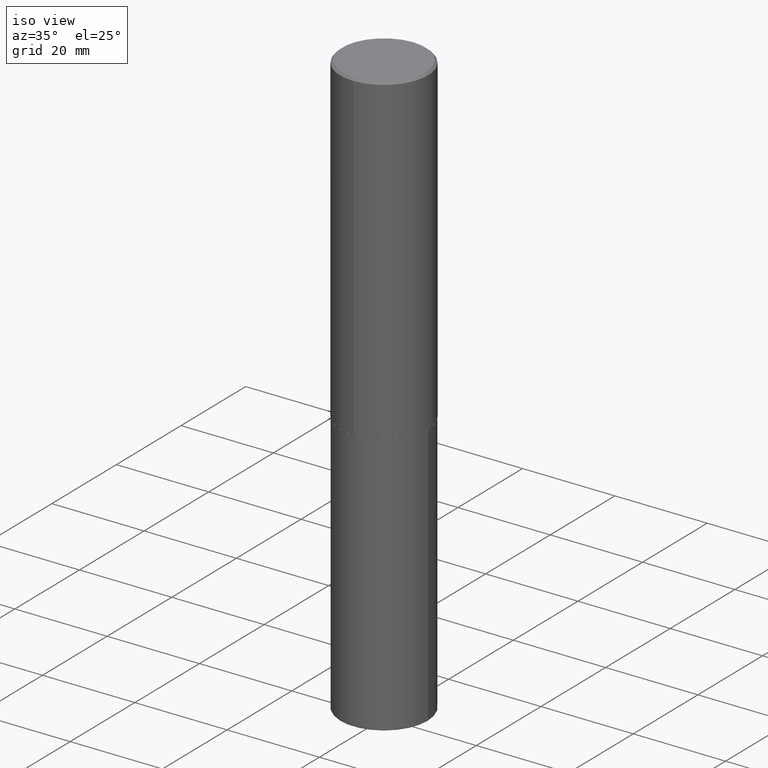
[diagram: clean part render]
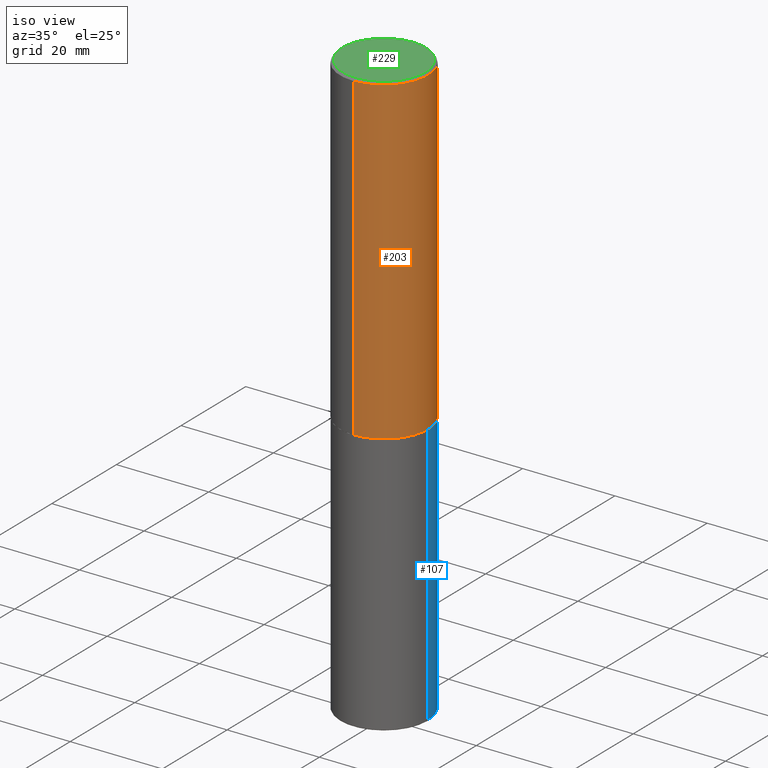
[diagram: same view with three faces highlighted in distinct colors, each labeled with its STEP entity id]
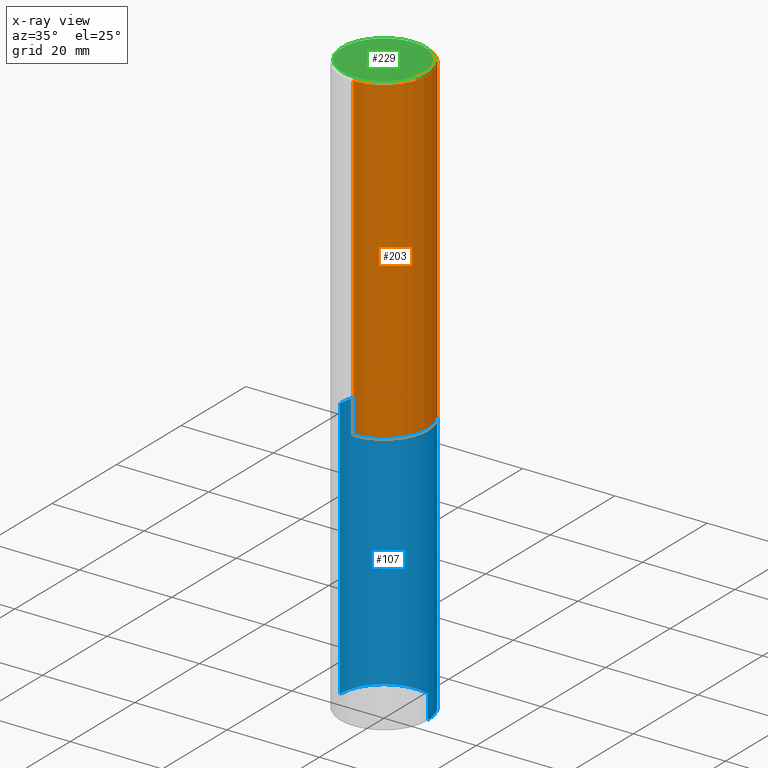
[diagram: x-ray of the same camera — body ghosted, the three highlighted faces saturated]
A machine part, iso view with three faces highlighted in distinct colors.
The next image is the same camera in x-ray (body ghosted, the three faces saturated) — at least one of them is partly hidden behind the body in this view.
Their STEP definitions:

[orange] entity #203 — the highlighted cylindrical surface (partial cylindrical patch) has radius 9.525 mm, axis along (-0, 0, 1).
#3 = ORIENTED_EDGE ( 'NONE', *, *, #283, .T. ) ;
#5 = AXIS2_PLACEMENT_3D ( 'NONE', #351, #161, #191 ) ;
#25 = EDGE_LOOP ( 'NONE', ( #71, #3, #204, #89 ) ) ;
#36 = CARTESIAN_POINT ( 'NONE',  ( 0.000000000000000000, 0.000000000000000000, 0.000000000000000000 ) ) ;
#43 = DIRECTION ( 'NONE',  ( -6.982962677686265922E-15, -1.000000000000000000, 3.494488891895536035E-15 ) ) ;
#55 = VERTEX_POINT ( 'NONE', #359 ) ;
#61 = DIRECTION ( 'NONE',  ( -2.446040391741596606E-29, 3.490662795793665557E-15, 1.000000000000000000 ) ) ;
#63 = CIRCLE ( 'NONE', #326, 0.3750000000000000555 ) ;
#71 = ORIENTED_EDGE ( 'NONE', *, *, #100, .T. ) ;
#81 = CYLINDRICAL_SURFACE ( 'NONE', #194, 0.3750000000000002220 ) ;
#89 = ORIENTED_EDGE ( 'NONE', *, *, #192, .F. ) ;
#100 = EDGE_CURVE ( 'NONE', #174, #116, #159, .T. ) ;
#110 = CARTESIAN_POINT ( 'NONE',  ( 2.664535259100376880E-15, 0.3750000000000002220, -1.308998548422625521E-15 ) ) ;
#116 = VERTEX_POINT ( 'NONE', #290 ) ;
#154 = EDGE_CURVE ( 'NONE', #341, #55, #63, .T. ) ;
#159 = CIRCLE ( 'NONE', #5, 0.3750000000000003886 ) ;
#161 = DIRECTION ( 'NONE',  ( -2.446040391741596606E-29, 3.490662795793665557E-15, 1.000000000000000000 ) ) ;
#162 = LINE ( 'NONE', #286, #309 ) ;
#167 = DIRECTION ( 'NONE',  ( -6.982962677686266711E-15, -1.000000000000000000, 3.490662795793665951E-15 ) ) ;
#174 = VERTEX_POINT ( 'NONE', #197 ) ;
#191 = DIRECTION ( 'NONE',  ( -6.982962677686265922E-15, -1.000000000000000000, 2.913971193241877611E-15 ) ) ;
#192 = EDGE_CURVE ( 'NONE', #174, #341, #162, .T. ) ;
#193 = CARTESIAN_POINT ( 'NONE',  ( 4.892080783483214581E-31, -6.981325591587361238E-17, -0.02000000000000008715 ) ) ;
#194 = AXIS2_PLACEMENT_3D ( 'NONE', #36, #195, #167 ) ;
#195 = DIRECTION ( 'NONE',  ( -2.446040391741596606E-29, 3.490662795793665557E-15, 1.000000000000000000 ) ) ;
#197 = CARTESIAN_POINT ( 'NONE',  ( -2.618611004132284935E-15, -0.3750000000000099920, -2.748999999999999222 ) ) ;
#203 = ADVANCED_FACE ( 'NONE', ( #386 ), #81, .T. ) ;
#204 = ORIENTED_EDGE ( 'NONE', *, *, #154, .F. ) ;
#206 = VECTOR ( 'NONE', #61, 39.37007874015748143 ) ;
#208 = CARTESIAN_POINT ( 'NONE',  ( -2.572686749164323547E-15, -0.3750000000000001110, -0.01999999999999877570 ) ) ;
#282 = DIRECTION ( 'NONE',  ( -2.446040391741596606E-29, 3.490662795793665557E-15, 1.000000000000000000 ) ) ;
#283 = EDGE_CURVE ( 'NONE', #116, #55, #411, .T. ) ;
#286 = CARTESIAN_POINT ( 'NONE',  ( -2.618611004132351594E-15, -0.3750000000000002220, 1.308998548422625521E-15 ) ) ;
#290 = CARTESIAN_POINT ( 'NONE',  ( 2.664535259100411196E-15, 0.3749999999999907296, -2.749000000000000998 ) ) ;
#309 = VECTOR ( 'NONE', #358, 39.37007874015748143 ) ;
#326 = AXIS2_PLACEMENT_3D ( 'NONE', #193, #282, #43 ) ;
#341 = VERTEX_POINT ( 'NONE', #208 ) ;
#351 = CARTESIAN_POINT ( 'NONE',  ( 6.724165036897648492E-29, -9.595832025636787455E-15, -2.749000000000000110 ) ) ;
#358 = DIRECTION ( 'NONE',  ( -2.446040391741596606E-29, 3.490662795793665557E-15, 1.000000000000000000 ) ) ;
#359 = CARTESIAN_POINT ( 'NONE',  ( 2.618611004132350411E-15, 0.3749999999999999445, -0.02000000000000139513 ) ) ;
#386 = FACE_OUTER_BOUND ( 'NONE', #25, .T. ) ;
#411 = LINE ( 'NONE', #110, #206 ) ;

[blue] entity #107 — the highlighted cylindrical surface (partial cylindrical patch) has radius 9.525 mm, axis along (-0, 0, 1).
#10 = VERTEX_POINT ( 'NONE', #168 ) ;
#17 = CARTESIAN_POINT ( 'NONE',  ( 1.220288934286383144E-28, -1.742249188082729666E-14, -4.990000000000000213 ) ) ;
#31 = DIRECTION ( 'NONE',  ( 1.000000000000000000, -6.982962677686261189E-15, 0.000000000000000000 ) ) ;
#37 = LINE ( 'NONE', #113, #216 ) ;
#45 = ORIENTED_EDGE ( 'NONE', *, *, #403, .F. ) ;
#52 = ORIENTED_EDGE ( 'NONE', *, *, #171, .T. ) ;
#66 = VERTEX_POINT ( 'NONE', #143 ) ;
#78 = DIRECTION ( 'NONE',  ( -2.445468806185136597E-29, 3.491481338843145583E-15, 1.000000000000000000 ) ) ;
#83 = ORIENTED_EDGE ( 'NONE', *, *, #353, .T. ) ;
#105 = AXIS2_PLACEMENT_3D ( 'NONE', #313, #78, #133 ) ;
#107 = ADVANCED_FACE ( 'NONE', ( #137 ), #223, .T. ) ;
#113 = CARTESIAN_POINT ( 'NONE',  ( 0.3750000000000000555, -2.618611004132350016E-15, 1.828566290923476203E-29 ) ) ;
#118 = VECTOR ( 'NONE', #390, 39.37007874015748143 ) ;
#120 = AXIS2_PLACEMENT_3D ( 'NONE', #319, #323, #361 ) ;
#133 = DIRECTION ( 'NONE',  ( 1.000000000000000000, -6.982962677686265922E-15, 4.876176775795935793E-29 ) ) ;
#137 = FACE_OUTER_BOUND ( 'NONE', #296, .T. ) ;
#143 = CARTESIAN_POINT ( 'NONE',  ( -0.3750000000000003886, -1.475795662172691781E-14, -4.990000000000000213 ) ) ;
#168 = CARTESIAN_POINT ( 'NONE',  ( -0.3750000000000000555, -1.084749752222259835E-14, -2.750000000000000000 ) ) ;
#170 = CIRCLE ( 'NONE', #178, 0.3750000000000000555 ) ;
#171 = EDGE_CURVE ( 'NONE', #66, #10, #388, .T. ) ;
#176 = EDGE_CURVE ( 'NONE', #418, #185, #37, .T. ) ;
#178 = AXIS2_PLACEMENT_3D ( 'NONE', #17, #182, #31 ) ;
#182 = DIRECTION ( 'NONE',  ( -2.445468806185136597E-29, 3.491481338843145583E-15, 1.000000000000000000 ) ) ;
#185 = VERTEX_POINT ( 'NONE', #320 ) ;
#216 = VECTOR ( 'NONE', #228, 39.37007874015748143 ) ;
#223 = CYLINDRICAL_SURFACE ( 'NONE', #105, 0.3750000000000000555 ) ;
#228 = DIRECTION ( 'NONE',  ( -2.445468806185136877E-29, 3.491481338843145188E-15, 1.000000000000000000 ) ) ;
#256 = CARTESIAN_POINT ( 'NONE',  ( 0.3750000000000003886, -2.004110288495964667E-14, -4.990000000000000213 ) ) ;
#296 = EDGE_LOOP ( 'NONE', ( #83, #52, #45, #408 ) ) ;
#313 = CARTESIAN_POINT ( 'NONE',  ( 0.000000000000000000, 0.000000000000000000, 0.000000000000000000 ) ) ;
#314 = CARTESIAN_POINT ( 'NONE',  ( -0.3750000000000000555, 2.664535259100376091E-15, -1.844600658845589598E-29 ) ) ;
#319 = CARTESIAN_POINT ( 'NONE',  ( 6.725039217009124520E-29, -9.601573681818649859E-15, -2.750000000000000000 ) ) ;
#320 = CARTESIAN_POINT ( 'NONE',  ( 0.3750000000000000555, -1.222018468595100145E-14, -2.750000000000000000 ) ) ;
#323 = DIRECTION ( 'NONE',  ( -2.445468806185136597E-29, 3.491481338843145583E-15, 1.000000000000000000 ) ) ;
#342 = CIRCLE ( 'NONE', #120, 0.3750000000000000555 ) ;
#353 = EDGE_CURVE ( 'NONE', #418, #66, #170, .T. ) ;
#361 = DIRECTION ( 'NONE',  ( 1.000000000000000000, -6.982962677686266711E-15, 0.000000000000000000 ) ) ;
#388 = LINE ( 'NONE', #314, #118 ) ;
#390 = DIRECTION ( 'NONE',  ( -2.445468806185136877E-29, 3.491481338843145188E-15, 1.000000000000000000 ) ) ;
#403 = EDGE_CURVE ( 'NONE', #185, #10, #342, .T. ) ;
#408 = ORIENTED_EDGE ( 'NONE', *, *, #176, .F. ) ;
#418 = VERTEX_POINT ( 'NONE', #256 ) ;

[green] entity #229 — the highlighted planar face has unit normal (0, -0, -1).
#4 = EDGE_CURVE ( 'NONE', #247, #98, #169, .T. ) ;
#82 = DIRECTION ( 'NONE',  ( -2.446040391741596606E-29, 3.490662795793665557E-15, 1.000000000000000000 ) ) ;
#98 = VERTEX_POINT ( 'NONE', #285 ) ;
#109 = FACE_OUTER_BOUND ( 'NONE', #367, .T. ) ;
#144 = EDGE_CURVE ( 'NONE', #98, #247, #149, .T. ) ;
#149 = CIRCLE ( 'NONE', #257, 0.3549999999999999822 ) ;
#160 = ORIENTED_EDGE ( 'NONE', *, *, #144, .T. ) ;
#163 = DIRECTION ( 'NONE',  ( -2.446040391741596606E-29, 3.490662795793665557E-15, 1.000000000000000000 ) ) ;
#169 = CIRCLE ( 'NONE', #244, 0.3549999999999999822 ) ;
#188 = PLANE ( 'NONE',  #385 ) ;
#229 = ADVANCED_FACE ( 'NONE', ( #109 ), #188, .F. ) ;
#244 = AXIS2_PLACEMENT_3D ( 'NONE', #397, #82, #322 ) ;
#247 = VERTEX_POINT ( 'NONE', #415 ) ;
#253 = CARTESIAN_POINT ( 'NONE',  ( -1.141397163745304909E-45, 1.628849886601155835E-31, 4.666305460853910467E-17 ) ) ;
#257 = AXIS2_PLACEMENT_3D ( 'NONE', #253, #163, #393 ) ;
#274 = DIRECTION ( 'NONE',  ( 6.982962677686265922E-15, 1.000000000000000000, -3.490662795793665557E-15 ) ) ;
#285 = CARTESIAN_POINT ( 'NONE',  ( 2.548781377355487113E-15, 0.3549999999999999822, -1.192522237898212341E-15 ) ) ;
#322 = DIRECTION ( 'NONE',  ( -6.982962677686265922E-15, -1.000000000000000000, 3.490662795793665557E-15 ) ) ;
#344 = DIRECTION ( 'NONE',  ( 2.446040391741596045E-29, -3.490662795793665557E-15, -1.000000000000000000 ) ) ;
#367 = EDGE_LOOP ( 'NONE', ( #160, #369 ) ) ;
#369 = ORIENTED_EDGE ( 'NONE', *, *, #4, .T. ) ;
#385 = AXIS2_PLACEMENT_3D ( 'NONE', #417, #344, #274 ) ;
#393 = DIRECTION ( 'NONE',  ( -6.982962677686265922E-15, -1.000000000000000000, 3.490662795793665557E-15 ) ) ;
#397 = CARTESIAN_POINT ( 'NONE',  ( -1.141397163745304909E-45, 1.628849886601155835E-31, 4.666305460853910467E-17 ) ) ;
#415 = CARTESIAN_POINT ( 'NONE',  ( -2.504081769186608216E-15, -0.3549999999999999822, 1.285848347115290366E-15 ) ) ;
#417 = CARTESIAN_POINT ( 'NONE',  ( 2.478951750578624209E-15, 0.3549999999999999822, -1.215853765202481601E-15 ) ) ;